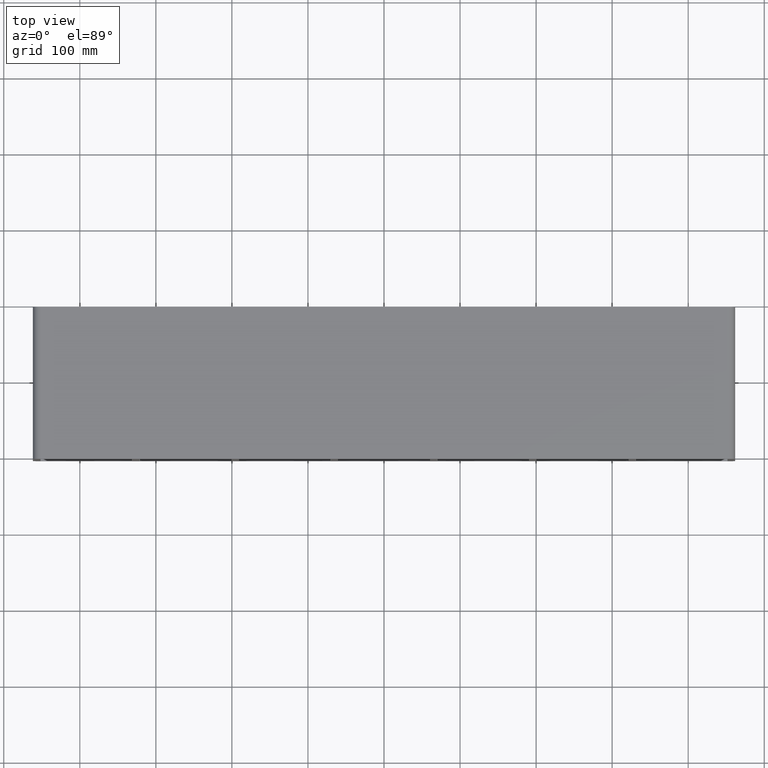
[diagram: clean part render]
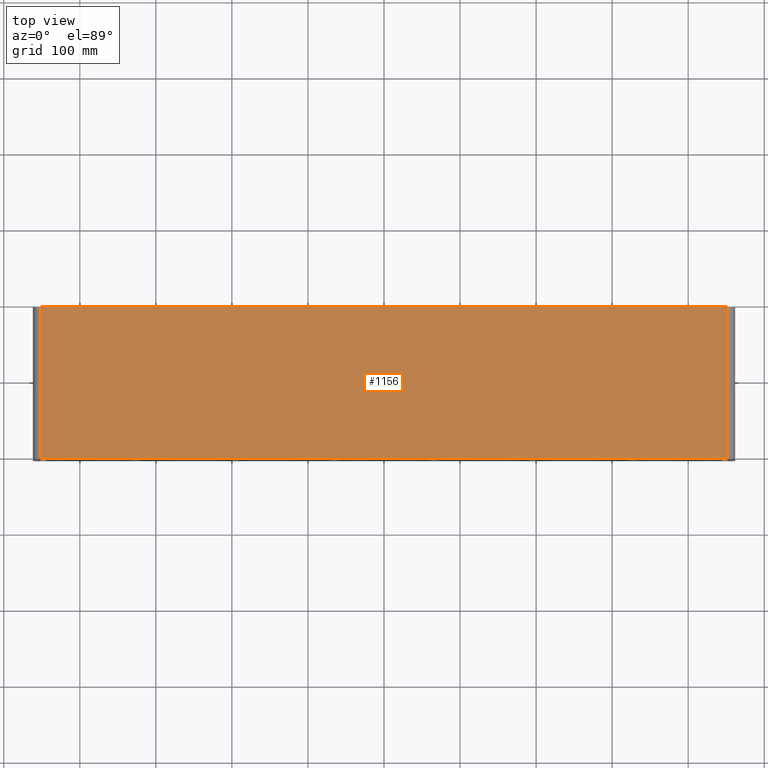
[diagram: same view with one face highlighted and labeled with its STEP entity id]
A machine part, top view. The second image highlights one B-rep face of the part: STEP entity #1156.
In plain terms, the highlighted planar face has unit normal (0, 0, 1).
Its self-contained STEP definition (entity closure, byte-faithful):
#965=CARTESIAN_POINT('',(451.75000000000006,-3.0,89.750000000000014));
#966=VERTEX_POINT('',#965);
#974=CARTESIAN_POINT('',(-451.75000000000006,-3.0,89.750000000000014));
#975=VERTEX_POINT('',#974);
#976=CARTESIAN_POINT('',(451.75000000000006,-3.0,89.750000000000014));
#977=DIRECTION('',(-1.0,0.0,0.0));
#978=VECTOR('',#977,903.50000000000011);
#979=LINE('',#976,#978);
#980=EDGE_CURVE('',#966,#975,#979,.T.);
#1115=CARTESIAN_POINT('',(451.75000000000006,197.0,89.750000000000014));
#1116=VERTEX_POINT('',#1115);
#1124=CARTESIAN_POINT('',(451.75000000000006,197.0,89.750000000000014));
#1125=DIRECTION('',(0.0,-1.0,0.0));
#1126=VECTOR('',#1125,200.0);
#1127=LINE('',#1124,#1126);
#1128=EDGE_CURVE('',#1116,#966,#1127,.T.);
#1133=CARTESIAN_POINT('',(-461.75000000000006,0.0,89.750000000000014));
#1134=DIRECTION('',(0.0,0.0,1.0));
#1135=DIRECTION('',(1.0,0.0,0.0));
#1136=AXIS2_PLACEMENT_3D('',#1133,#1134,#1135);
#1137=PLANE('',#1136);
#1138=ORIENTED_EDGE('',*,*,#1128,.F.);
#1139=CARTESIAN_POINT('',(-451.75000000000006,197.0,89.750000000000014));
#1140=VERTEX_POINT('',#1139);
#1141=CARTESIAN_POINT('',(-451.75000000000006,197.0,89.750000000000014));
#1142=DIRECTION('',(1.0,0.0,0.0));
#1143=VECTOR('',#1142,903.50000000000011);
#1144=LINE('',#1141,#1143);
#1145=EDGE_CURVE('',#1140,#1116,#1144,.T.);
#1146=ORIENTED_EDGE('',*,*,#1145,.F.);
#1147=CARTESIAN_POINT('',(-451.75000000000006,-3.0,89.750000000000014));
#1148=DIRECTION('',(0.0,1.0,0.0));
#1149=VECTOR('',#1148,200.0);
#1150=LINE('',#1147,#1149);
#1151=EDGE_CURVE('',#975,#1140,#1150,.T.);
#1152=ORIENTED_EDGE('',*,*,#1151,.F.);
#1153=ORIENTED_EDGE('',*,*,#980,.F.);
#1154=EDGE_LOOP('',(#1138,#1146,#1152,#1153));
#1155=FACE_OUTER_BOUND('',#1154,.T.);
#1156=ADVANCED_FACE('',(#1155),#1137,.T.);